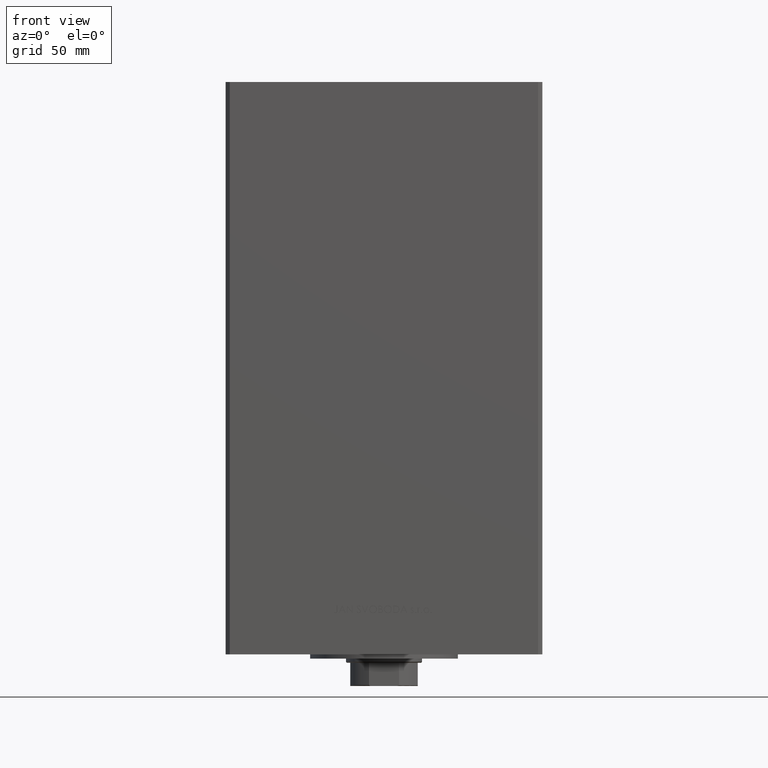
[diagram: clean part render]
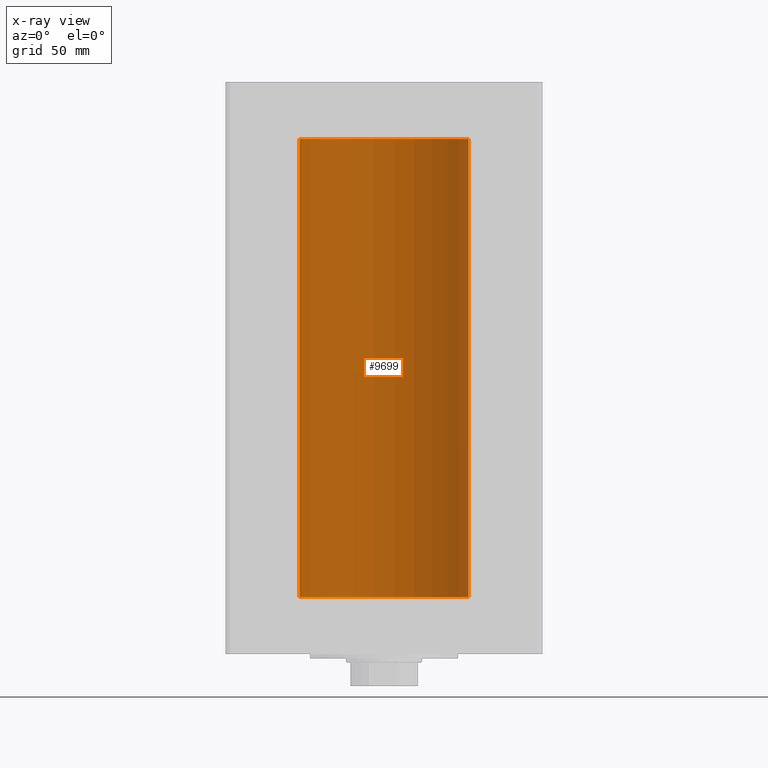
[diagram: x-ray — body ghosted, one internal face saturated and labeled with its STEP entity id]
A machine part, front view, then the same camera in x-ray: the body is ghosted and one INTERNAL B-rep face — a face not visible from any outside direction — is saturated and labeled: STEP entity #9699.
In plain terms, the highlighted cylindrical surface (partial cylindrical patch) has radius 40 mm, axis along (-0, -0, -1).
Its self-contained STEP definition (entity closure, byte-faithful):
#555 = CARTESIAN_POINT ( 'NONE',  ( 0.000000000000000000, 0.000000000000000000, 217.0000000000000000 ) ) ;
#1591 = DIRECTION ( 'NONE',  ( 1.000000000000000000, 0.000000000000000000, 0.000000000000000000 ) ) ;
#4405 = EDGE_LOOP ( 'NONE', ( #44076, #17091, #31743, #12993 ) ) ;
#6422 = DIRECTION ( 'NONE',  ( 1.000000000000000000, 0.000000000000000000, 0.000000000000000000 ) ) ;
#6556 = CARTESIAN_POINT ( 'NONE',  ( -40.00000000000000000, 0.000000000000000000, 0.000000000000000000 ) ) ;
#7712 = LINE ( 'NONE', #38157, #46430 ) ;
#7821 = CIRCLE ( 'NONE', #22843, 40.00000000000000000 ) ;
#9490 = CARTESIAN_POINT ( 'NONE',  ( 0.000000000000000000, 0.000000000000000000, 0.000000000000000000 ) ) ;
#9699 = ADVANCED_FACE ( 'NONE', ( #37710 ), #41409, .F. ) ;
#10583 = LINE ( 'NONE', #40079, #28348 ) ;
#12957 = DIRECTION ( 'NONE',  ( -0.000000000000000000, 0.000000000000000000, 1.000000000000000000 ) ) ;
#12993 = ORIENTED_EDGE ( 'NONE', *, *, #33659, .F. ) ;
#14044 = AXIS2_PLACEMENT_3D ( 'NONE', #9490, #12957, #1591 ) ;
#15163 = DIRECTION ( 'NONE',  ( -1.000000000000000000, 0.000000000000000000, 0.000000000000000000 ) ) ;
#15690 = EDGE_CURVE ( 'NONE', #47153, #36525, #7712, .T. ) ;
#17091 = ORIENTED_EDGE ( 'NONE', *, *, #39950, .T. ) ;
#18604 = CARTESIAN_POINT ( 'NONE',  ( 40.00000000000000000, 4.898587196589413026E-15, 217.0000000000000000 ) ) ;
#21252 = DIRECTION ( 'NONE',  ( -0.000000000000000000, -0.000000000000000000, -1.000000000000000000 ) ) ;
#22843 = AXIS2_PLACEMENT_3D ( 'NONE', #25749, #47279, #6422 ) ;
#24995 = CARTESIAN_POINT ( 'NONE',  ( -40.00000000000000000, 0.000000000000000000, 217.0000000000000000 ) ) ;
#25749 = CARTESIAN_POINT ( 'NONE',  ( 0.000000000000000000, 0.000000000000000000, 217.0000000000000000 ) ) ;
#26328 = VERTEX_POINT ( 'NONE', #36928 ) ;
#27056 = DIRECTION ( 'NONE',  ( -0.000000000000000000, -0.000000000000000000, -1.000000000000000000 ) ) ;
#28348 = VECTOR ( 'NONE', #21252, 1000.000000000000000 ) ;
#30015 = DIRECTION ( 'NONE',  ( -0.000000000000000000, -0.000000000000000000, -1.000000000000000000 ) ) ;
#31743 = ORIENTED_EDGE ( 'NONE', *, *, #15690, .T. ) ;
#33659 = EDGE_CURVE ( 'NONE', #26328, #36525, #47253, .T. ) ;
#34130 = EDGE_CURVE ( 'NONE', #47971, #26328, #10583, .T. ) ;
#36525 = VERTEX_POINT ( 'NONE', #6556 ) ;
#36928 = CARTESIAN_POINT ( 'NONE',  ( 40.00000000000000000, 4.898587196589413026E-15, 0.000000000000000000 ) ) ;
#37710 = FACE_OUTER_BOUND ( 'NONE', #4405, .T. ) ;
#38157 = CARTESIAN_POINT ( 'NONE',  ( -40.00000000000000000, 0.000000000000000000, 217.0000000000000000 ) ) ;
#38465 = AXIS2_PLACEMENT_3D ( 'NONE', #555, #27056, #15163 ) ;
#39950 = EDGE_CURVE ( 'NONE', #47971, #47153, #7821, .T. ) ;
#40079 = CARTESIAN_POINT ( 'NONE',  ( 40.00000000000000000, 4.898587196589413026E-15, 217.0000000000000000 ) ) ;
#41409 = CYLINDRICAL_SURFACE ( 'NONE', #38465, 40.00000000000000000 ) ;
#44076 = ORIENTED_EDGE ( 'NONE', *, *, #34130, .F. ) ;
#46430 = VECTOR ( 'NONE', #30015, 1000.000000000000000 ) ;
#47153 = VERTEX_POINT ( 'NONE', #24995 ) ;
#47253 = CIRCLE ( 'NONE', #14044, 40.00000000000000000 ) ;
#47279 = DIRECTION ( 'NONE',  ( -0.000000000000000000, 0.000000000000000000, 1.000000000000000000 ) ) ;
#47971 = VERTEX_POINT ( 'NONE', #18604 ) ;